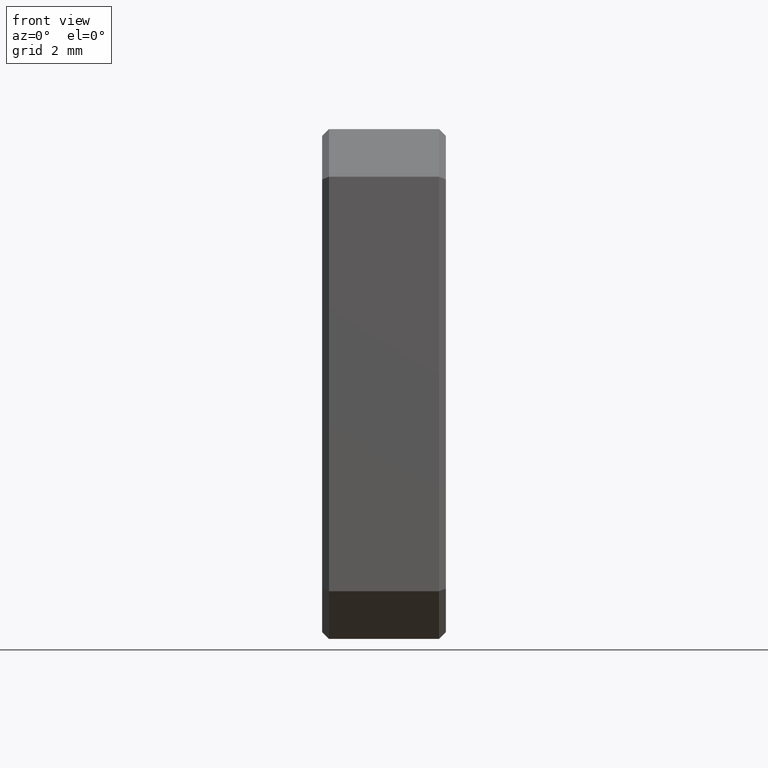
[diagram: clean part render]
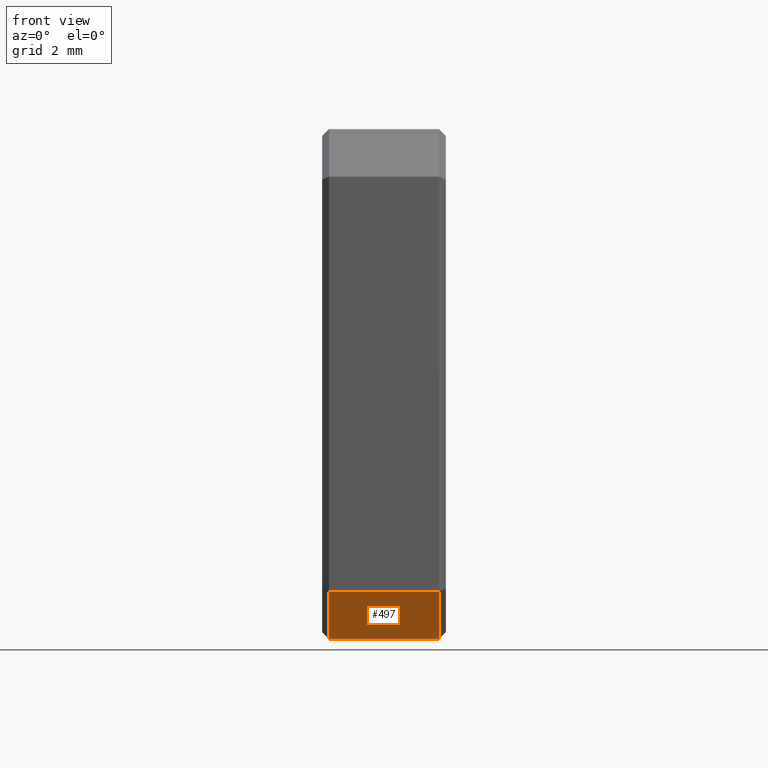
[diagram: same view with one face highlighted and labeled with its STEP entity id]
A machine part, front view. The second image highlights one B-rep face of the part: STEP entity #497.
In plain terms, the highlighted planar face has unit normal (0, 0.7071, 0.7071).
Its self-contained STEP definition (entity closure, byte-faithful):
#119 = VECTOR ( 'NONE', #1083, 39.37007874015748100 ) ;
#159 = VECTOR ( 'NONE', #920, 39.37007874015748100 ) ;
#163 = ORIENTED_EDGE ( 'NONE', *, *, #1011, .T. ) ;
#181 = DIRECTION ( 'NONE',  ( -0.0000000000000000000, -0.7071067811865454600, 0.7071067811865495700 ) ) ;
#255 = VECTOR ( 'NONE', #181, 39.37007874015748100 ) ;
#267 = PLANE ( 'NONE',  #908 ) ;
#271 = LINE ( 'NONE', #900, #119 ) ;
#289 = CARTESIAN_POINT ( 'NONE',  ( 0.1820000000000000000, -0.3050000000000003800, -0.3749999999999999400 ) ) ;
#303 = CARTESIAN_POINT ( 'NONE',  ( 0.009999999999999892700, -0.3750000000000000600, -0.3049999999999998800 ) ) ;
#466 = LINE ( 'NONE', #1101, #159 ) ;
#496 = VERTEX_POINT ( 'NONE', #893 ) ;
#497 = ADVANCED_FACE ( 'NONE', ( #636 ), #267, .F. ) ;
#511 = ORIENTED_EDGE ( 'NONE', *, *, #1029, .T. ) ;
#520 = CARTESIAN_POINT ( 'NONE',  ( 0.1820000000000000000, -0.3050000000000003800, -0.3749999999999999400 ) ) ;
#521 = LINE ( 'NONE', #289, #706 ) ;
#543 = CARTESIAN_POINT ( 'NONE',  ( 0.1719999999999999600, -0.3050000000000003800, -0.3749999999999999400 ) ) ;
#564 = LINE ( 'NONE', #1086, #255 ) ;
#570 = VERTEX_POINT ( 'NONE', #1006 ) ;
#636 = FACE_OUTER_BOUND ( 'NONE', #660, .T. ) ;
#660 = EDGE_LOOP ( 'NONE', ( #936, #163, #1178, #511 ) ) ;
#706 = VECTOR ( 'NONE', #842, 39.37007874015748100 ) ;
#803 = VERTEX_POINT ( 'NONE', #303 ) ;
#842 = DIRECTION ( 'NONE',  ( -1.000000000000000000, 0.0000000000000000000, 0.0000000000000000000 ) ) ;
#893 = CARTESIAN_POINT ( 'NONE',  ( 0.009999999999999892700, -0.3050000000000003800, -0.3749999999999999400 ) ) ;
#900 = CARTESIAN_POINT ( 'NONE',  ( 0.009999999999999892700, -0.3050000000000003800, -0.3749999999999999400 ) ) ;
#904 = DIRECTION ( 'NONE',  ( 0.0000000000000000000, 0.7071067811865495700, 0.7071067811865454600 ) ) ;
#908 = AXIS2_PLACEMENT_3D ( 'NONE', #520, #904, #1183 ) ;
#920 = DIRECTION ( 'NONE',  ( 1.000000000000000000, 0.0000000000000000000, 0.0000000000000000000 ) ) ;
#936 = ORIENTED_EDGE ( 'NONE', *, *, #1179, .F. ) ;
#1006 = CARTESIAN_POINT ( 'NONE',  ( 0.1719999999999999600, -0.3750000000000000600, -0.3049999999999998800 ) ) ;
#1011 = EDGE_CURVE ( 'NONE', #1043, #570, #564, .T. ) ;
#1029 = EDGE_CURVE ( 'NONE', #803, #496, #271, .T. ) ;
#1043 = VERTEX_POINT ( 'NONE', #543 ) ;
#1083 = DIRECTION ( 'NONE',  ( -0.0000000000000000000, 0.7071067811865454600, -0.7071067811865495700 ) ) ;
#1086 = CARTESIAN_POINT ( 'NONE',  ( 0.1719999999999999600, -0.3050000000000003800, -0.3749999999999999400 ) ) ;
#1101 = CARTESIAN_POINT ( 'NONE',  ( 0.1820000000000000000, -0.3750000000000000600, -0.3049999999999998800 ) ) ;
#1125 = EDGE_CURVE ( 'NONE', #803, #570, #466, .T. ) ;
#1178 = ORIENTED_EDGE ( 'NONE', *, *, #1125, .F. ) ;
#1179 = EDGE_CURVE ( 'NONE', #1043, #496, #521, .T. ) ;
#1183 = DIRECTION ( 'NONE',  ( -1.000000000000000000, -0.0000000000000000000, 0.0000000000000000000 ) ) ;